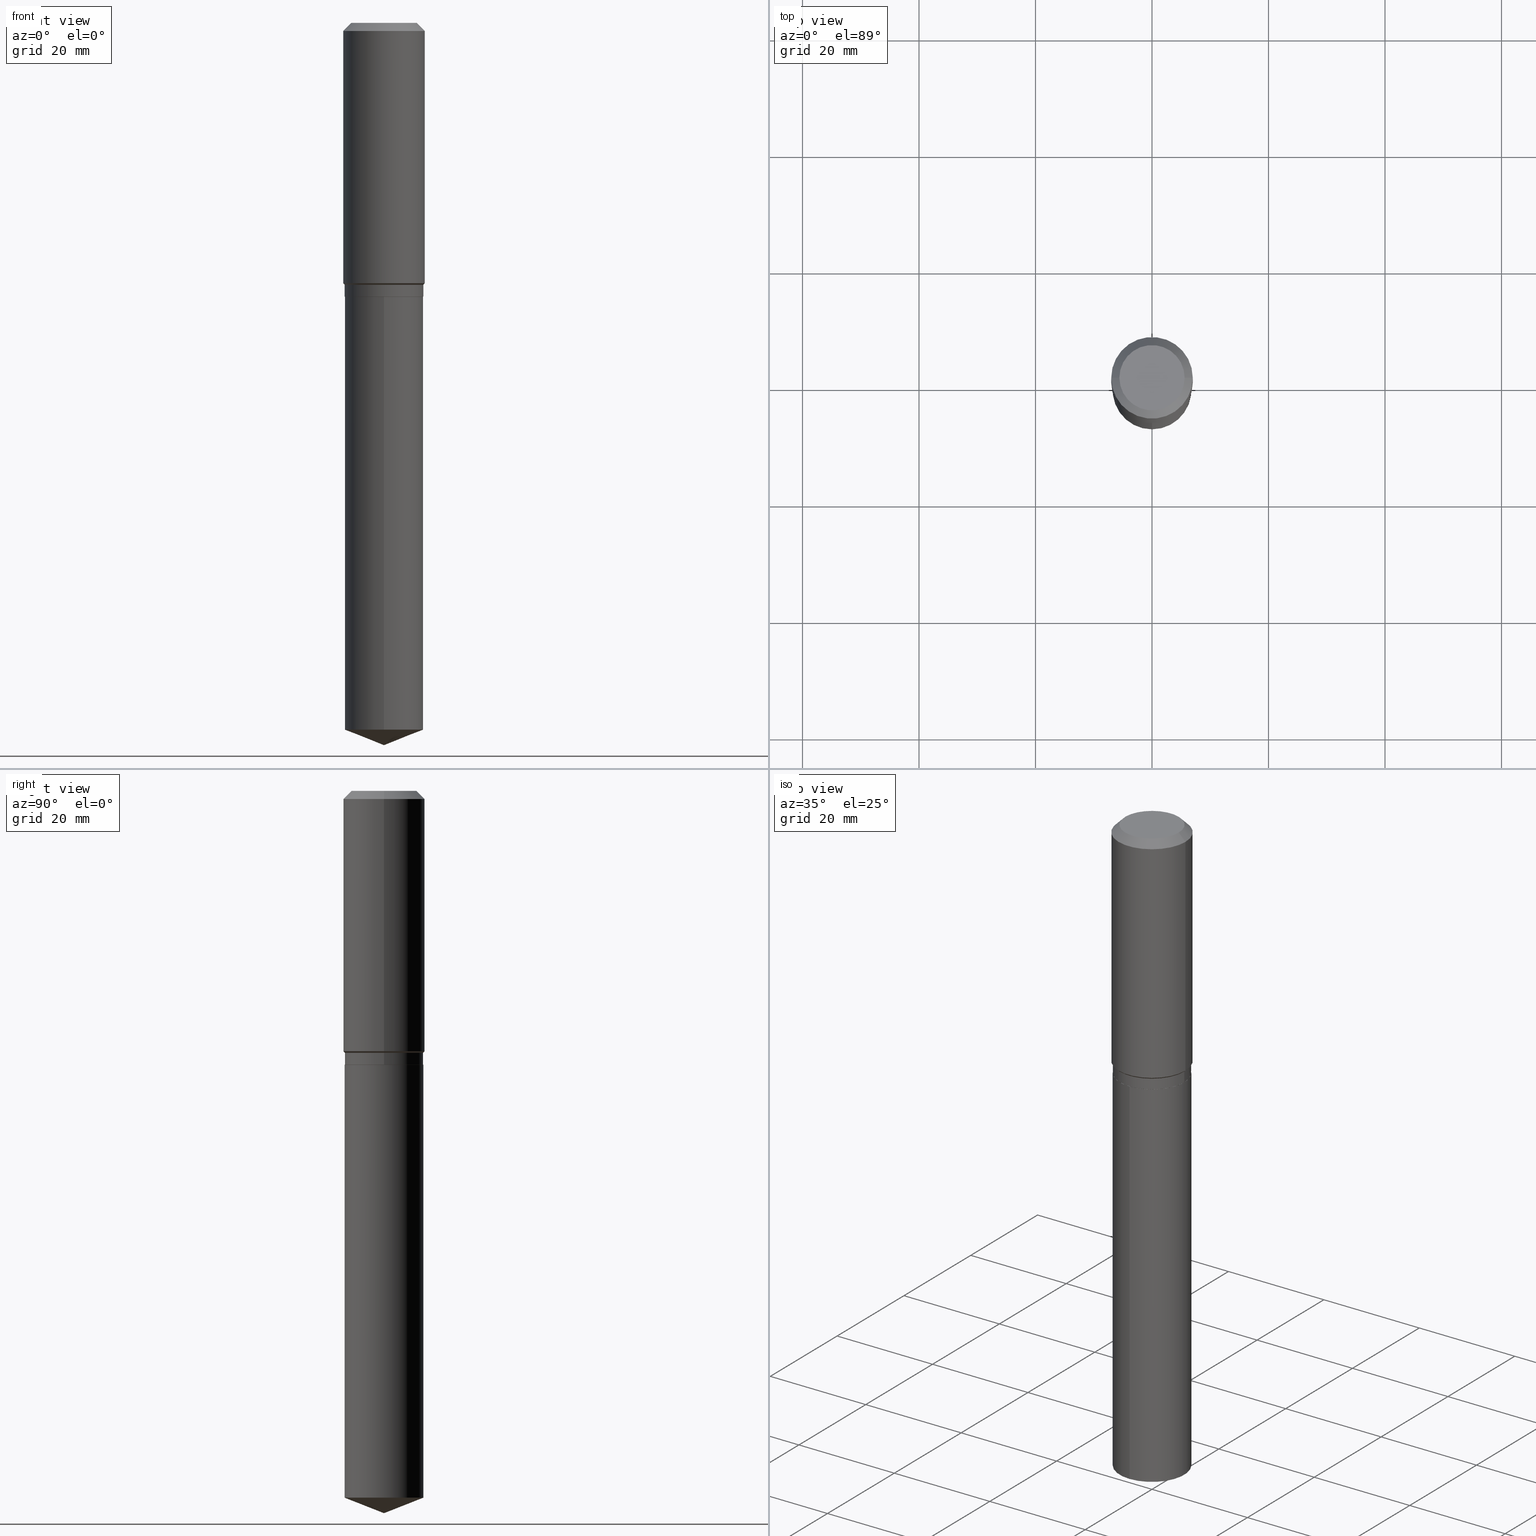
[diagram: canonical four-view strip — front | top / right | iso, engineering-drawing reading convention]
A machine part, canonical four-view strip (front | top / right | iso — engineering-drawing reading convention). The complete STEP part file that produces these views, byte-faithful:
ISO-10303-21;
HEADER;
FILE_DESCRIPTION (( 'STEP AP203' ),
    '1' );
FILE_NAME ('66597.STEP',
    '2024-04-25T01:43:05',
    ( '' ),
    ( '' ),
    'SwSTEP 2.0',
    'SolidWorks 2023',
    '' );
FILE_SCHEMA (( 'CONFIG_CONTROL_DESIGN' ));
ENDSEC;

DATA;
#1 = LINE ( 'NONE', #376, #362 ) ;
#2 = ORIENTED_EDGE ( 'NONE', *, *, #170, .F. ) ;
#3 = AXIS2_PLACEMENT_3D ( 'NONE', #70, #261, #490 ) ;
#4 = APPROVAL_DATE_TIME ( #384, #237 ) ;
#5 = ADVANCED_FACE ( 'NONE', ( #104 ), #301, .T. ) ;
#6 = ORIENTED_EDGE ( 'NONE', *, *, #364, .F. ) ;
#7 = ORIENTED_EDGE ( 'NONE', *, *, #309, .T. ) ;
#8 = AXIS2_PLACEMENT_3D ( 'NONE', #371, #180, #23 ) ;
#9 = DATE_AND_TIME ( #466, #47 ) ;
#10 = DIRECTION ( 'NONE',  ( 0.000000000000000000, 0.000000000000000000, 1.000000000000000000 ) ) ;
#11 = CARTESIAN_POINT ( 'NONE',  ( 4.329213427589546246E-29, -6.180969414154018505E-15, -1.770299999999999319 ) ) ;
#12 = ADVANCED_FACE ( 'NONE', ( #408 ), #314, .T. ) ;
#13 = CONICAL_SURFACE ( 'NONE', #108, 0.2756000000000000116, 0.7853981633974452814 ) ;
#14 = ORIENTED_EDGE ( 'NONE', *, *, #48, .F. ) ;
#15 = AXIS2_PLACEMENT_3D ( 'NONE', #85, #458, #351 ) ;
#16 = DIRECTION ( 'NONE',  ( 1.000000000000000000, -6.982962677686267499E-15, 4.876176775795935793E-29 ) ) ;
#17 = FACE_OUTER_BOUND ( 'NONE', #382, .T. ) ;
#18 = EDGE_CURVE ( 'NONE', #136, #114, #165, .T. ) ;
#19 = ORIENTED_EDGE ( 'NONE', *, *, #51, .F. ) ;
#20 = LINE ( 'NONE', #94, #201 ) ;
#21 = DIRECTION ( 'NONE',  ( 1.000000000000000000, -6.982962677686266711E-15, 4.876132675269083677E-29 ) ) ;
#22 = CARTESIAN_POINT ( 'NONE',  ( 1.347942405969256063E-30, -1.924504513970354330E-16, -0.05512000000000035621 ) ) ;
#23 = DIRECTION ( 'NONE',  ( 1.000000000000000000, -6.982962677686265922E-15, 0.000000000000000000 ) ) ;
#24 = CIRCLE ( 'NONE', #166, 0.2652499999999999858 ) ;
#25 = AXIS2_PLACEMENT_3D ( 'NONE', #424, #10, #268 ) ;
#26 = FACE_OUTER_BOUND ( 'NONE', #252, .T. ) ;
#27 = EDGE_CURVE ( 'NONE', #310, #473, #461, .T. ) ;
#28 = CARTESIAN_POINT ( 'NONE',  ( 0.000000000000000000, 0.000000000000000000, 0.000000000000000000 ) ) ;
#29 = CARTESIAN_POINT ( 'NONE',  ( 4.525340025845595057E-29, -6.460986217529240299E-15, -1.850499999999999812 ) ) ;
#30 = ADVANCED_FACE ( 'NONE', ( #416 ), #127, .T. ) ;
#31 = DIRECTION ( 'NONE',  ( 0.7071067811865453523, -7.319954787623248157E-15, -0.7071067811865496822 ) ) ;
#32 = VERTEX_POINT ( 'NONE', #116 ) ;
#33 = AXIS2_PLACEMENT_3D ( 'NONE', #216, #361, #472 ) ;
#34 = DIRECTION ( 'NONE',  ( -1.000000000000000000, 6.982962677686265922E-15, -4.876176775795935793E-29 ) ) ;
#35 = DIRECTION ( 'NONE',  ( -2.445468806185136597E-29, 3.491481338843145583E-15, 1.000000000000000000 ) ) ;
#36 = VERTEX_POINT ( 'NONE', #233 ) ;
#37 = DIRECTION ( 'NONE',  ( 6.611014441532061856E-15, 0.9304175679820264611, 0.3665012267242919175 ) ) ;
#38 = ORIENTED_EDGE ( 'NONE', *, *, #234, .T. ) ;
#39 = EDGE_CURVE ( 'NONE', #197, #427, #429, .T. ) ;
#40 = APPROVAL_PERSON_ORGANIZATION ( #209, #375, #422 ) ;
#41 = ORIENTED_EDGE ( 'NONE', *, *, #234, .F. ) ;
#42 = COORDINATED_UNIVERSAL_TIME_OFFSET ( 5, 0, .BEHIND. ) ;
#43 = EDGE_LOOP ( 'NONE', ( #161, #344 ) ) ;
#44 = ADVANCED_FACE ( 'NONE', ( #239 ), #448, .T. ) ;
#45 = CALENDAR_DATE ( 2024, 24, 4 ) ;
#46 = CONICAL_SURFACE ( 'NONE', #391, 99.94676754583952061, 1.195550537616117959 ) ;
#47 = LOCAL_TIME ( 21, 43, 5.000000000000000000, #126 ) ;
#48 = EDGE_CURVE ( 'NONE', #197, #124, #278, .T. ) ;
#49 = APPROVAL_ROLE ( '' ) ;
#50 = DIRECTION ( 'NONE',  ( -0.7071067811865500152, 7.493145998870363626E-15, 0.7071067811865450192 ) ) ;
#51 = EDGE_CURVE ( 'NONE', #302, #136, #20, .T. ) ;
#52 = VERTEX_POINT ( 'NONE', #106 ) ;
#53 = CARTESIAN_POINT ( 'NONE',  ( -0.2657499999999999862, -4.431837625224452504E-15, -1.849999999999999867 ) ) ;
#54 = CC_DESIGN_DATE_AND_TIME_ASSIGNMENT ( #9, #393, ( #291 ) ) ;
#55 = CARTESIAN_POINT ( 'NONE',  ( 4.525340025845595057E-29, -6.460986217529240299E-15, -1.850499999999999812 ) ) ;
#56 = ORIENTED_EDGE ( 'NONE', *, *, #229, .T. ) ;
#57 = CONICAL_SURFACE ( 'NONE', #203, 99.94676754583952061, 1.195550537616117959 ) ;
#58 = DIRECTION ( 'NONE',  ( -2.445468806185136597E-29, 3.491481338843145583E-15, 1.000000000000000000 ) ) ;
#59 = LINE ( 'NONE', #368, #271 ) ;
#60 = ORIENTED_EDGE ( 'NONE', *, *, #383, .F. ) ;
#61 = LINE ( 'NONE', #97, #346 ) ;
#62 = CARTESIAN_POINT ( 'NONE',  ( -9.439721640706190018E-47, 1.347742071746724849E-32, 3.860086710912454339E-18 ) ) ;
#63 = CARTESIAN_POINT ( 'NONE',  ( -0.2657499999999999862, -4.292702093871551964E-15, -1.770299999999999319 ) ) ;
#64 = LINE ( 'NONE', #438, #453 ) ;
#65 = LINE ( 'NONE', #147, #329 ) ;
#66 = AXIS2_PLACEMENT_3D ( 'NONE', #212, #370, #16 ) ;
#67 =( LENGTH_UNIT ( ) NAMED_UNIT ( * ) SI_UNIT ( $, .METRE. ) );
#68 = FACE_OUTER_BOUND ( 'NONE', #379, .T. ) ;
#69 = FACE_OUTER_BOUND ( 'NONE', #435, .T. ) ;
#70 = CARTESIAN_POINT ( 'NONE',  ( 4.525340025845595057E-29, -6.460986217529240299E-15, -1.850499999999999812 ) ) ;
#71 = CC_DESIGN_PERSON_AND_ORGANIZATION_ASSIGNMENT ( #465, #95, ( #307 ) ) ;
#72 = DIRECTION ( 'NONE',  ( -6.982962677686266711E-15, -1.000000000000000000, 4.111906669673397387E-15 ) ) ;
#73 = EDGE_LOOP ( 'NONE', ( #366, #81, #420, #41 ) ) ;
#74 = CONICAL_SURFACE ( 'NONE', #210, 0.2657499999999999862, 0.7853981633974518317 ) ;
#75 = CC_DESIGN_APPROVAL ( #375, ( #331 ) ) ;
#76 = CARTESIAN_POINT ( 'NONE',  ( -9.439721640706190018E-47, 1.347742071746724849E-32, 3.860086710912454339E-18 ) ) ;
#77 = VERTEX_POINT ( 'NONE', #395 ) ;
#78 = ADVANCED_FACE ( 'NONE', ( #332 ), #179, .T. ) ;
#79 = VERTEX_POINT ( 'NONE', #324 ) ;
#80 = DIMENSIONAL_EXPONENTS ( 1.000000000000000000, 0.000000000000000000, 0.000000000000000000, 0.000000000000000000, 0.000000000000000000, 0.000000000000000000, 0.000000000000000000 ) ;
#81 = ORIENTED_EDGE ( 'NONE', *, *, #51, .T. ) ;
#82 = COORDINATED_UNIVERSAL_TIME_OFFSET ( 5, 0, .BEHIND. ) ;
#83 = VECTOR ( 'NONE', #413, 39.37007874015748143 ) ;
#84 = APPROVAL_PERSON_ORGANIZATION ( #276, #388, #162 ) ;
#85 = CARTESIAN_POINT ( 'NONE',  ( 0.000000000000000000, 0.000000000000000000, 0.000000000000000000 ) ) ;
#86 = ORIENTED_EDGE ( 'NONE', *, *, #178, .F. ) ;
#87 = DATE_AND_TIME ( #206, #347 ) ;
#88 = ADVANCED_FACE ( 'NONE', ( #289 ), #410, .F. ) ;
#89 = EDGE_LOOP ( 'NONE', ( #131, #423, #100, #319 ) ) ;
#90 = APPROVAL_STATUS ( 'not_yet_approved' ) ;
#91 = EDGE_CURVE ( 'NONE', #124, #310, #367, .T. ) ;
#92 = DATE_AND_TIME ( #45, #101 ) ;
#93 = AXIS2_PLACEMENT_3D ( 'NONE', #481, #249, #476 ) ;
#94 = CARTESIAN_POINT ( 'NONE',  ( 1.888267320282511506E-15, 0.2657499999999935469, -1.850500000000000700 ) ) ;
#95 = PERSON_AND_ORGANIZATION_ROLE ( 'design_owner' ) ;
#96 = ADVANCED_FACE ( 'NONE', ( #407 ), #13, .T. ) ;
#97 = CARTESIAN_POINT ( 'NONE',  ( 0.2756000000000001227, -1.924504513970336137E-15, 1.343874319409360548E-29 ) ) ;
#98 = ORIENTED_EDGE ( 'NONE', *, *, #425, .F. ) ;
#99 = AXIS2_PLACEMENT_3D ( 'NONE', #199, #343, #327 ) ;
#100 = ORIENTED_EDGE ( 'NONE', *, *, #135, .T. ) ;
#101 = LOCAL_TIME ( 21, 43, 5.000000000000000000, #82 ) ;
#102 = CARTESIAN_POINT ( 'NONE',  ( 4.525340025845595057E-29, -6.460986217529240299E-15, -1.850499999999999812 ) ) ;
#103 = CARTESIAN_POINT ( 'NONE',  ( 0.2657499999999999862, -8.036691745749144640E-15, -1.770299999999999319 ) ) ;
#104 = FACE_OUTER_BOUND ( 'NONE', #73, .T. ) ;
#105 = DIRECTION ( 'NONE',  ( -6.982962677686266711E-15, -1.000000000000000000, 3.083930002255048040E-15 ) ) ;
#106 = CARTESIAN_POINT ( 'NONE',  ( 0.2652499999999999858, -8.313217067785521850E-15, -1.850499999999999812 ) ) ;
#107 = CARTESIAN_POINT ( 'NONE',  ( -4.719860820353095009E-47, 6.738710358733624243E-33, 1.930043355456227170E-18 ) ) ;
#108 = AXIS2_PLACEMENT_3D ( 'NONE', #358, #434, #226 ) ;
#109 = DIRECTION ( 'NONE',  ( -2.445468806185136597E-29, 3.491481338843145583E-15, 1.000000000000000000 ) ) ;
#110 = DIRECTION ( 'NONE',  ( -2.445248501264134508E-29, 3.491796828028997738E-15, 1.000000000000000000 ) ) ;
#111 = DIRECTION ( 'NONE',  ( -2.445248501264134508E-29, 3.491796828028997738E-15, 1.000000000000000000 ) ) ;
#112 = DIRECTION ( 'NONE',  ( 1.000000000000000000, -6.982962677686265922E-15, 0.000000000000000000 ) ) ;
#113 = CARTESIAN_POINT ( 'NONE',  ( 4.305125559848622317E-29, -6.146578322966412912E-15, -1.760449999999999182 ) ) ;
#114 = VERTEX_POINT ( 'NONE', #221 ) ;
#115 = DIRECTION ( 'NONE',  ( 2.438088387897960049E-29, -3.491481338843145188E-15, -1.000000000000000000 ) ) ;
#116 = CARTESIAN_POINT ( 'NONE',  ( -0.2652499999999999858, -4.573622383751463456E-15, -1.850499999999999812 ) ) ;
#117 = ORIENTED_EDGE ( 'NONE', *, *, #305, .T. ) ;
#118 = ORIENTED_EDGE ( 'NONE', *, *, #425, .T. ) ;
#119 = PRODUCT_RELATED_PRODUCT_CATEGORY ( 'detail', '', ( #307 ) ) ;
#120 = SECURITY_CLASSIFICATION_LEVEL ( 'unclassified' ) ;
#121 = PERSON_AND_ORGANIZATION ( #389, #192 ) ;
#122 = AXIS2_PLACEMENT_3D ( 'NONE', #22, #182, #153 ) ;
#123 = CIRCLE ( 'NONE', #468, 0.2652499999999999858 ) ;
#124 = VERTEX_POINT ( 'NONE', #474 ) ;
#125 = PERSON_AND_ORGANIZATION_ROLE ( 'creator' ) ;
#126 = COORDINATED_UNIVERSAL_TIME_OFFSET ( 5, 0, .BEHIND. ) ;
#127 = CONICAL_SURFACE ( 'NONE', #3, 0.2652499999999999858, 0.7853981633975507526 ) ;
#128 = CIRCLE ( 'NONE', #8, 0.2756000000000000116 ) ;
#129 = ADVANCED_FACE ( 'NONE', ( #402 ), #74, .T. ) ;
#130 = CARTESIAN_POINT ( 'NONE',  ( 0.2657499999999999862, -1.855722331595125347E-15, 1.295843978167769732E-29 ) ) ;
#131 = ORIENTED_EDGE ( 'NONE', *, *, #394, .F. ) ;
#132 = CARTESIAN_POINT ( 'NONE',  ( 4.329213427589546246E-29, -6.180969414154018505E-15, -1.770299999999999319 ) ) ;
#133 = EDGE_LOOP ( 'NONE', ( #439, #421, #262, #406 ) ) ;
#134 = DIRECTION ( 'NONE',  ( 1.000000000000000000, -6.982962677686268288E-15, 0.000000000000000000 ) ) ;
#135 = EDGE_CURVE ( 'NONE', #349, #36, #128, .T. ) ;
#136 = VERTEX_POINT ( 'NONE', #282 ) ;
#137 = CARTESIAN_POINT ( 'NONE',  ( 4.525340025845595057E-29, -6.460986217529240299E-15, -1.850499999999999812 ) ) ;
#138 = CIRCLE ( 'NONE', #149, 0.2204800000000000093 ) ;
#139 = CIRCLE ( 'NONE', #172, 0.2657499999999999862 ) ;
#140 = DIRECTION ( 'NONE',  ( -2.445468806185136877E-29, 3.491481338843145188E-15, 1.000000000000000000 ) ) ;
#141 = APPROVAL_DATE_TIME ( #92, #375 ) ;
#142 = CC_DESIGN_PERSON_AND_ORGANIZATION_ASSIGNMENT ( #272, #350, ( #317 ) ) ;
#143 = CARTESIAN_POINT ( 'NONE',  ( 0.2657499999999999862, -8.314962808454944142E-15, -1.849999999999999867 ) ) ;
#144 = CARTESIAN_POINT ( 'NONE',  ( -0.2657499999999999862, 1.888267320282466146E-15, -1.307207000235241229E-29 ) ) ;
#145 = CARTESIAN_POINT ( 'NONE',  ( -8.433151517659321881E-28, 1.204259477624346472E-13, 34.48807874015748354 ) ) ;
#146 = ADVANCED_FACE ( 'NONE', ( #171 ), #316, .T. ) ;
#147 = CARTESIAN_POINT ( 'NONE',  ( 1.193852568132814653E-28, -1.704578448896072688E-14, -4.881999999999999673 ) ) ;
#148 = EDGE_CURVE ( 'NONE', #52, #32, #24, .T. ) ;
#149 = AXIS2_PLACEMENT_3D ( 'NONE', #76, #109, #238 ) ;
#150 = CARTESIAN_POINT ( 'NONE',  ( 1.888267320282583292E-15, 0.2657499999999833884, -4.777318291105330239 ) ) ;
#151 = CC_DESIGN_APPROVAL ( #237, ( #291 ) ) ;
#152 = DIRECTION ( 'NONE',  ( 1.000000000000000000, -6.982962677686266711E-15, 4.876176775795935232E-29 ) ) ;
#153 = DIRECTION ( 'NONE',  ( -1.000000000000000000, 6.982962677686269077E-15, 0.000000000000000000 ) ) ;
#154 = DIRECTION ( 'NONE',  ( -2.445468806185136597E-29, 3.491481338843145583E-15, 1.000000000000000000 ) ) ;
#155 = DIRECTION ( 'NONE',  ( 1.000000000000000000, -6.982962677686268288E-15, 0.000000000000000000 ) ) ;
#156 = EDGE_LOOP ( 'NONE', ( #19, #455, #38, #215 ) ) ;
#157 = ORIENTED_EDGE ( 'NONE', *, *, #207, .F. ) ;
#158 = AXIS2_PLACEMENT_3D ( 'NONE', #28, #363, #175 ) ;
#159 = ORIENTED_EDGE ( 'NONE', *, *, #242, .F. ) ;
#160 = CALENDAR_DATE ( 2024, 24, 4 ) ;
#161 = ORIENTED_EDGE ( 'NONE', *, *, #385, .T. ) ;
#162 = APPROVAL_ROLE ( '' ) ;
#163 = ORIENTED_EDGE ( 'NONE', *, *, #305, .F. ) ;
#164 = PERSON_AND_ORGANIZATION ( #389, #192 ) ;
#165 = CIRCLE ( 'NONE', #451, 0.2657499999999999862 ) ;
#166 = AXIS2_PLACEMENT_3D ( 'NONE', #102, #185, #315 ) ;
#167 = VECTOR ( 'NONE', #255, 39.37007874015748143 ) ;
#168 = APPLICATION_PROTOCOL_DEFINITION ( 'international standard', 'config_control_design', 1994, #280 ) ;
#169 = PERSON_AND_ORGANIZATION ( #389, #192 ) ;
#170 = EDGE_CURVE ( 'NONE', #427, #79, #469, .T. ) ;
#171 = FACE_OUTER_BOUND ( 'NONE', #471, .T. ) ;
#172 = AXIS2_PLACEMENT_3D ( 'NONE', #483, #432, #283 ) ;
#173 = ORIENTED_EDGE ( 'NONE', *, *, #383, .T. ) ;
#174 = CARTESIAN_POINT ( 'NONE',  ( -0.2204800000000000093, 1.635828836874783961E-15, 3.860086710901350968E-18 ) ) ;
#175 = DIRECTION ( 'NONE',  ( 1.000000000000000000, -6.982962677686267499E-15, 4.876176775795935793E-29 ) ) ;
#176 = LINE ( 'NONE', #286, #355 ) ;
#177 = VERTEX_POINT ( 'NONE', #174 ) ;
#178 = EDGE_CURVE ( 'NONE', #473, #349, #61, .T. ) ;
#179 = CYLINDRICAL_SURFACE ( 'NONE', #66, 0.2756000000000001227 ) ;
#180 = DIRECTION ( 'NONE',  ( -2.445468806185136597E-29, 3.491481338843145583E-15, 1.000000000000000000 ) ) ;
#181 = LINE ( 'NONE', #103, #167 ) ;
#182 = DIRECTION ( 'NONE',  ( 2.445468806185136597E-29, -3.491481338843145583E-15, -1.000000000000000000 ) ) ;
#183 = AXIS2_PLACEMENT_3D ( 'NONE', #374, #297, #191 ) ;
#184 = CIRCLE ( 'NONE', #311, 0.2657499999999999862 ) ;
#185 = DIRECTION ( 'NONE',  ( -2.445468806185136597E-29, 3.491481338843145583E-15, 1.000000000000000000 ) ) ;
#186 = DIRECTION ( 'NONE',  ( -6.982962677686266711E-15, -1.000000000000000000, 3.498627837350020000E-15 ) ) ;
#187 = CARTESIAN_POINT ( 'NONE',  ( -0.2756000000000002337, -4.188322543211574745E-15, -1.760449999999999182 ) ) ;
#188 = DIRECTION ( 'NONE',  ( -2.438088387897960049E-29, 3.491481338843145188E-15, 1.000000000000000000 ) ) ;
#189 = MANIFOLD_SOLID_BREP ( 'Body-Move/Copy2[1]', #335 ) ;
#190 = CIRCLE ( 'NONE', #452, 0.2657499999999999862 ) ;
#191 = DIRECTION ( 'NONE',  ( 1.000000000000000000, -6.982962677686267499E-15, 0.000000000000000000 ) ) ;
#192 = ORGANIZATION ( 'UNSPECIFIED', 'UNSPECIFIED', '' ) ;
#193 = ORIENTED_EDGE ( 'NONE', *, *, #91, .T. ) ;
#194 = ORIENTED_EDGE ( 'NONE', *, *, #364, .T. ) ;
#195 = LINE ( 'NONE', #381, #462 ) ;
#196 = EDGE_CURVE ( 'NONE', #36, #349, #467, .T. ) ;
#197 = VERTEX_POINT ( 'NONE', #53 ) ;
#198 = LINE ( 'NONE', #373, #270 ) ;
#199 = CARTESIAN_POINT ( 'NONE',  ( 4.525340025845595057E-29, -6.460986217529240299E-15, -1.850499999999999812 ) ) ;
#200 = LENGTH_MEASURE_WITH_UNIT ( LENGTH_MEASURE( 0.02539999999999999897 ), #67 );
#201 = VECTOR ( 'NONE', #441, 39.37007874015748143 ) ;
#202 = EDGE_LOOP ( 'NONE', ( #342, #193, #163, #225 ) ) ;
#203 = AXIS2_PLACEMENT_3D ( 'NONE', #145, #372, #186 ) ;
#204 = EDGE_CURVE ( 'NONE', #302, #77, #354, .T. ) ;
#205 = EDGE_LOOP ( 'NONE', ( #279, #173, #348, #352 ) ) ;
#206 = CALENDAR_DATE ( 2024, 24, 4 ) ;
#207 = EDGE_CURVE ( 'NONE', #79, #124, #190, .T. ) ;
#208 = ORIENTED_EDGE ( 'NONE', *, *, #91, .F. ) ;
#209 = PERSON_AND_ORGANIZATION ( #389, #192 ) ;
#210 = AXIS2_PLACEMENT_3D ( 'NONE', #11, #58, #134 ) ;
#211 = APPROVAL_DATE_TIME ( #87, #388 ) ;
#212 = CARTESIAN_POINT ( 'NONE',  ( 0.000000000000000000, 0.000000000000000000, 0.000000000000000000 ) ) ;
#213 = APPROVAL_STATUS ( 'not_yet_approved' ) ;
#214 = CC_DESIGN_DATE_AND_TIME_ASSIGNMENT ( #274, #387, ( #331 ) ) ;
#215 = ORIENTED_EDGE ( 'NONE', *, *, #18, .F. ) ;
#216 = CARTESIAN_POINT ( 'NONE',  ( 1.168213806564335856E-28, -1.668084104262808193E-14, -4.777318291105329351 ) ) ;
#217 = AXIS2_PLACEMENT_3D ( 'NONE', #267, #254, #338 ) ;
#218 = CIRCLE ( 'NONE', #377, 0.2657499999999999862 ) ;
#219 = ADVANCED_FACE ( 'NONE', ( #445 ), #293, .T. ) ;
#220 = ORIENTED_EDGE ( 'NONE', *, *, #39, .F. ) ;
#221 = CARTESIAN_POINT ( 'NONE',  ( -1.855722331595079987E-15, -0.2657500000000064255, -1.850499999999998924 ) ) ;
#222 = CC_DESIGN_PERSON_AND_ORGANIZATION_ASSIGNMENT ( #121, #244, ( #331 ) ) ;
#223 = DIRECTION ( 'NONE',  ( -2.445468806185136877E-29, 3.491481338843145188E-15, 1.000000000000000000 ) ) ;
#224 = CYLINDRICAL_SURFACE ( 'NONE', #158, 0.2756000000000001227 ) ;
#225 = ORIENTED_EDGE ( 'NONE', *, *, #414, .F. ) ;
#226 = DIRECTION ( 'NONE',  ( -1.000000000000000000, 6.982962677686269077E-15, 0.000000000000000000 ) ) ;
#227 = CIRCLE ( 'NONE', #294, 0.2204800000000000093 ) ;
#228 = DIRECTION ( 'NONE',  ( -0.7071067811865453523, 2.468850131082234184E-15, -0.7071067811865496822 ) ) ;
#229 = EDGE_CURVE ( 'NONE', #124, #79, #218, .T. ) ;
#230 = PLANE ( 'NONE',  #336 ) ;
#231 =( CONVERSION_BASED_UNIT ( 'INCH', #200 ) LENGTH_UNIT ( ) NAMED_UNIT ( #80 ) );
#232 = CYLINDRICAL_SURFACE ( 'NONE', #15, 0.2657499999999999862 ) ;
#233 = CARTESIAN_POINT ( 'NONE',  ( -0.2756000000000000116, -1.211258607426886733E-15, -0.05512000000000035621 ) ) ;
#234 = EDGE_CURVE ( 'NONE', #77, #114, #443, .T. ) ;
#235 = AXIS2_PLACEMENT_3D ( 'NONE', #264, #417, #72 ) ;
#236 = CARTESIAN_POINT ( 'NONE',  ( 4.525340025845595057E-29, -6.460986217529240299E-15, -1.850499999999999812 ) ) ;
#237 = APPROVAL ( #213, 'UNSPECIFIED' ) ;
#238 = DIRECTION ( 'NONE',  ( 1.000000000000000000, -6.982962677686266711E-15, 4.876132675269083677E-29 ) ) ;
#239 = FACE_OUTER_BOUND ( 'NONE', #156, .T. ) ;
#240 = ORIENTED_EDGE ( 'NONE', *, *, #296, .T. ) ;
#241 = CALENDAR_DATE ( 2024, 24, 4 ) ;
#242 = EDGE_CURVE ( 'NONE', #246, #349, #195, .T. ) ;
#243 = ADVANCED_BREP_SHAPE_REPRESENTATION ( '66597', ( #189, #356, #25 ), #487 ) ;
#244 = PERSON_AND_ORGANIZATION_ROLE ( 'classification_officer' ) ;
#245 = AXIS2_PLACEMENT_3D ( 'NONE', #444, #257, #152 ) ;
#246 = VERTEX_POINT ( 'NONE', #447 ) ;
#247 = CARTESIAN_POINT ( 'NONE',  ( 1.347942405969256063E-30, -1.924504513970354330E-16, -0.05512000000000035621 ) ) ;
#248 = ORIENTED_EDGE ( 'NONE', *, *, #204, .F. ) ;
#249 = DIRECTION ( 'NONE',  ( 2.445248501264134228E-29, -3.491796828028997738E-15, -1.000000000000000000 ) ) ;
#250 = AXIS2_PLACEMENT_3D ( 'NONE', #113, #479, #259 ) ;
#251 = CIRCLE ( 'NONE', #235, 0.2657499999999999862 ) ;
#252 = EDGE_LOOP ( 'NONE', ( #341, #488, #157, #2 ) ) ;
#253 = DIRECTION ( 'NONE',  ( 1.000000000000000000, -6.982962677686268288E-15, 0.000000000000000000 ) ) ;
#254 = DIRECTION ( 'NONE',  ( -2.445248501264134508E-29, 3.491796828028997738E-15, 1.000000000000000000 ) ) ;
#255 = DIRECTION ( 'NONE',  ( 0.7071067811865500152, -2.468850131082282699E-15, 0.7071067811865450192 ) ) ;
#256 = DIRECTION ( 'NONE',  ( 1.000000000000000000, -6.982962677686268288E-15, 0.000000000000000000 ) ) ;
#257 = DIRECTION ( 'NONE',  ( -2.445468806185136597E-29, 3.491481338843145583E-15, 1.000000000000000000 ) ) ;
#258 = PLANE ( 'NONE',  #437 ) ;
#259 = DIRECTION ( 'NONE',  ( 1.000000000000000000, -6.982962677686267499E-15, 0.000000000000000000 ) ) ;
#260 = FACE_OUTER_BOUND ( 'NONE', #442, .T. ) ;
#261 = DIRECTION ( 'NONE',  ( -2.445468806185136597E-29, 3.491481338843145583E-15, 1.000000000000000000 ) ) ;
#262 = ORIENTED_EDGE ( 'NONE', *, *, #178, .T. ) ;
#263 = AXIS2_PLACEMENT_3D ( 'NONE', #436, #287, #253 ) ;
#264 = CARTESIAN_POINT ( 'NONE',  ( 1.168213806564335856E-28, -1.668084104262808193E-14, -4.777318291105329351 ) ) ;
#265 = LOCAL_TIME ( 21, 43, 5.000000000000000000, #457 ) ;
#266 = EDGE_LOOP ( 'NONE', ( #60, #194, #323, #220 ) ) ;
#267 = CARTESIAN_POINT ( 'NONE',  ( 4.525340025845595057E-29, -6.460986217529240299E-15, -1.850499999999999812 ) ) ;
#268 = DIRECTION ( 'NONE',  ( 1.000000000000000000, 0.000000000000000000, 0.000000000000000000 ) ) ;
#269 = ADVANCED_FACE ( 'NONE', ( #260 ), #258, .F. ) ;
#270 = VECTOR ( 'NONE', #340, 39.37007874015748143 ) ;
#271 = VECTOR ( 'NONE', #325, 39.37007874015748143 ) ;
#272 = PERSON_AND_ORGANIZATION ( #389, #192 ) ;
#273 = ORIENTED_EDGE ( 'NONE', *, *, #288, .T. ) ;
#274 = DATE_AND_TIME ( #160, #285 ) ;
#275 = EDGE_CURVE ( 'NONE', #77, #302, #251, .T. ) ;
#276 = PERSON_AND_ORGANIZATION ( #389, #192 ) ;
#277 = VECTOR ( 'NONE', #140, 39.37007874015748143 ) ;
#278 = LINE ( 'NONE', #144, #277 ) ;
#279 = ORIENTED_EDGE ( 'NONE', *, *, #148, .T. ) ;
#280 = APPLICATION_CONTEXT ( 'configuration controlled 3d designs of mechanical parts and assemblies' ) ;
#281 = ORIENTED_EDGE ( 'NONE', *, *, #275, .F. ) ;
#282 = CARTESIAN_POINT ( 'NONE',  ( 1.888267320282583292E-15, 0.2657499999999935469, -1.850500000000000700 ) ) ;
#283 = DIRECTION ( 'NONE',  ( 1.000000000000000000, -6.982962677686268288E-15, 0.000000000000000000 ) ) ;
#284 = ORIENTED_EDGE ( 'NONE', *, *, #298, .T. ) ;
#285 = LOCAL_TIME ( 21, 43, 5.000000000000000000, #428 ) ;
#286 = CARTESIAN_POINT ( 'NONE',  ( -0.2652499999999999858, -4.576271610925574657E-15, -1.850499999999999812 ) ) ;
#287 = DIRECTION ( 'NONE',  ( -2.445468806185136597E-29, 3.491481338843145583E-15, 1.000000000000000000 ) ) ;
#288 = EDGE_CURVE ( 'NONE', #463, #302, #65, .T. ) ;
#289 = FACE_OUTER_BOUND ( 'NONE', #43, .T. ) ;
#290 = CARTESIAN_POINT ( 'NONE',  ( 0.2756000000000002337, -8.071082836936750233E-15, -1.760449999999999182 ) ) ;
#291 = PRODUCT_DEFINITION ( 'UNKNOWN', '', #317, #320 ) ;
#292 = FACE_OUTER_BOUND ( 'NONE', #339, .T. ) ;
#293 = CONICAL_SURFACE ( 'NONE', #477, 0.2652499999999999858, 0.7853981633975507526 ) ;
#294 = AXIS2_PLACEMENT_3D ( 'NONE', #62, #399, #21 ) ;
#295 = DIRECTION ( 'NONE',  ( -2.445468806185136597E-29, 3.491481338843145583E-15, 1.000000000000000000 ) ) ;
#296 = EDGE_CURVE ( 'NONE', #177, #36, #1, .T. ) ;
#297 = DIRECTION ( 'NONE',  ( -2.445468806185136597E-29, 3.491481338843145583E-15, 1.000000000000000000 ) ) ;
#298 = EDGE_CURVE ( 'NONE', #177, #246, #138, .T. ) ;
#299 = CARTESIAN_POINT ( 'NONE',  ( 4.525340025845595057E-29, -6.460986217529240299E-15, -1.850499999999999812 ) ) ;
#300 = CARTESIAN_POINT ( 'NONE',  ( -1.855722331595079987E-15, -0.2657500000000064255, -1.850499999999998924 ) ) ;
#301 = CYLINDRICAL_SURFACE ( 'NONE', #217, 0.2657499999999999862 ) ;
#302 = VERTEX_POINT ( 'NONE', #150 ) ;
#303 = AXIS2_PLACEMENT_3D ( 'NONE', #247, #398, #321 ) ;
#304 = ORIENTED_EDGE ( 'NONE', *, *, #298, .F. ) ;
#305 = EDGE_CURVE ( 'NONE', #473, #310, #486, .T. ) ;
#306 = APPLICATION_PROTOCOL_DEFINITION ( 'international standard', 'config_control_design', 1994, #369 ) ;
#307 = PRODUCT ( '66597', '66597', '', ( #353 ) ) ;
#308 = VECTOR ( 'NONE', #50, 39.37007874015748143 ) ;
#309 = EDGE_CURVE ( 'NONE', #310, #36, #198, .T. ) ;
#310 = VERTEX_POINT ( 'NONE', #187 ) ;
#311 = AXIS2_PLACEMENT_3D ( 'NONE', #137, #440, #105 ) ;
#312 =( NAMED_UNIT ( * ) PLANE_ANGLE_UNIT ( ) SI_UNIT ( $, .RADIAN. ) );
#313 = PERSON_AND_ORGANIZATION_ROLE ( 'design_supplier' ) ;
#314 = CONICAL_SURFACE ( 'NONE', #122, 0.2756000000000000116, 0.7853981633974452814 ) ;
#315 = DIRECTION ( 'NONE',  ( 1.000000000000000000, -6.982962677686265922E-15, 0.000000000000000000 ) ) ;
#316 = CONICAL_SURFACE ( 'NONE', #263, 0.2657499999999999862, 0.7853981633974518317 ) ;
#317 = PRODUCT_DEFINITION_FORMATION_WITH_SPECIFIED_SOURCE ( 'ANY', '', #307, .NOT_KNOWN. ) ;
#318 = ADVANCED_FACE ( 'NONE', ( #292 ), #46, .T. ) ;
#319 = ORIENTED_EDGE ( 'NONE', *, *, #296, .F. ) ;
#320 = DESIGN_CONTEXT ( 'detailed design', #369, 'design' ) ;
#321 = DIRECTION ( 'NONE',  ( 1.000000000000000000, -6.982962677686265922E-15, 0.000000000000000000 ) ) ;
#322 = DIRECTION ( 'NONE',  ( -0.7071067811866199593, 7.493145998870616062E-15, 0.7071067811864750752 ) ) ;
#323 = ORIENTED_EDGE ( 'NONE', *, *, #450, .T. ) ;
#324 = CARTESIAN_POINT ( 'NONE',  ( 0.2657499999999999862, -8.036691745749144640E-15, -1.770299999999999319 ) ) ;
#325 = DIRECTION ( 'NONE',  ( 0.7071067811866199593, -2.468850131083015945E-15, 0.7071067811864750752 ) ) ;
#326 = EDGE_LOOP ( 'NONE', ( #360, #118, #248 ) ) ;
#327 = DIRECTION ( 'NONE',  ( -6.982962677686266711E-15, -1.000000000000000000, 3.083930002255048040E-15 ) ) ;
#328 = ADVANCED_FACE ( 'NONE', ( #26 ), #333, .T. ) ;
#329 = VECTOR ( 'NONE', #37, 39.37007874015748854 ) ;
#330 = DIRECTION ( 'NONE',  ( -6.982962677686266711E-15, -1.000000000000000000, 3.083930002255048040E-15 ) ) ;
#331 = SECURITY_CLASSIFICATION ( '', '', #120 ) ;
#332 = FACE_OUTER_BOUND ( 'NONE', #133, .T. ) ;
#333 = CYLINDRICAL_SURFACE ( 'NONE', #245, 0.2657499999999999862 ) ;
#334 = DIRECTION ( 'NONE',  ( -6.982962677686266711E-15, -1.000000000000000000, 3.498627837350020000E-15 ) ) ;
#335 = CLOSED_SHELL ( 'NONE', ( #5, #318, #456, #44, #88 ) ) ;
#336 = AXIS2_PLACEMENT_3D ( 'NONE', #29, #188, #485 ) ;
#337 = CARTESIAN_POINT ( 'NONE',  ( -8.433151517659321881E-28, 1.204259477624346472E-13, 34.48807874015748354 ) ) ;
#338 = DIRECTION ( 'NONE',  ( -6.982962677686266711E-15, -1.000000000000000000, 3.083930002255048040E-15 ) ) ;
#339 = EDGE_LOOP ( 'NONE', ( #98, #273, #281 ) ) ;
#340 = DIRECTION ( 'NONE',  ( -2.445468806185136877E-29, 3.491481338843145188E-15, 1.000000000000000000 ) ) ;
#341 = ORIENTED_EDGE ( 'NONE', *, *, #409, .T. ) ;
#342 = ORIENTED_EDGE ( 'NONE', *, *, #207, .T. ) ;
#343 = DIRECTION ( 'NONE',  ( -2.445248501264134508E-29, 3.491796828028997738E-15, 1.000000000000000000 ) ) ;
#344 = ORIENTED_EDGE ( 'NONE', *, *, #18, .T. ) ;
#345 = ADVANCED_FACE ( 'NONE', ( #68 ), #230, .F. ) ;
#346 = VECTOR ( 'NONE', #223, 39.37007874015748143 ) ;
#347 = LOCAL_TIME ( 21, 43, 5.000000000000000000, #42 ) ;
#348 = ORIENTED_EDGE ( 'NONE', *, *, #409, .F. ) ;
#349 = VERTEX_POINT ( 'NONE', #415 ) ;
#350 = PERSON_AND_ORGANIZATION_ROLE ( 'creator' ) ;
#351 = DIRECTION ( 'NONE',  ( 1.000000000000000000, -6.982962677686266711E-15, 4.876176775795935232E-29 ) ) ;
#352 = ORIENTED_EDGE ( 'NONE', *, *, #450, .F. ) ;
#353 = MECHANICAL_CONTEXT ( 'NONE', #280, 'mechanical' ) ;
#354 = CIRCLE ( 'NONE', #33, 0.2657499999999999862 ) ;
#355 = VECTOR ( 'NONE', #322, 39.37007874015748143 ) ;
#356 = MANIFOLD_SOLID_BREP ( 'Body-Move/Copy2[2]', #401 ) ;
#357 = DIRECTION ( 'NONE',  ( -2.445468806185136597E-29, 3.491481338843145583E-15, 1.000000000000000000 ) ) ;
#358 = CARTESIAN_POINT ( 'NONE',  ( 1.347942405969256063E-30, -1.924504513970354330E-16, -0.05512000000000035621 ) ) ;
#359 = ADVANCED_FACE ( 'NONE', ( #69 ), #232, .T. ) ;
#360 = ORIENTED_EDGE ( 'NONE', *, *, #288, .F. ) ;
#361 = DIRECTION ( 'NONE',  ( -2.445248501264134508E-29, 3.491796828028997738E-15, 1.000000000000000000 ) ) ;
#362 = VECTOR ( 'NONE', #228, 39.37007874015748143 ) ;
#363 = DIRECTION ( 'NONE',  ( -2.445468806185136597E-29, 3.491481338843145583E-15, 1.000000000000000000 ) ) ;
#364 = EDGE_CURVE ( 'NONE', #32, #52, #123, .T. ) ;
#365 = DIRECTION ( 'NONE',  ( 1.000000000000000000, -6.982962677686265922E-15, 0.000000000000000000 ) ) ;
#366 = ORIENTED_EDGE ( 'NONE', *, *, #275, .T. ) ;
#367 = LINE ( 'NONE', #63, #308 ) ;
#368 = CARTESIAN_POINT ( 'NONE',  ( 0.2652499999999999858, -8.313217067785521850E-15, -1.850499999999999812 ) ) ;
#369 = APPLICATION_CONTEXT ( 'configuration controlled 3d designs of mechanical parts and assemblies' ) ;
#370 = DIRECTION ( 'NONE',  ( -2.445468806185136597E-29, 3.491481338843145583E-15, 1.000000000000000000 ) ) ;
#371 = CARTESIAN_POINT ( 'NONE',  ( 1.347942405969256063E-30, -1.924504513970354330E-16, -0.05512000000000035621 ) ) ;
#372 = DIRECTION ( 'NONE',  ( -2.445248501264134508E-29, 3.491796828028997738E-15, 1.000000000000000000 ) ) ;
#373 = CARTESIAN_POINT ( 'NONE',  ( -0.2756000000000001227, 1.958255779754836984E-15, -1.355658510874252567E-29 ) ) ;
#374 = CARTESIAN_POINT ( 'NONE',  ( 4.305125559848622317E-29, -6.146578322966412912E-15, -1.760449999999999182 ) ) ;
#375 = APPROVAL ( #390, 'UNSPECIFIED' ) ;
#376 = CARTESIAN_POINT ( 'NONE',  ( -0.2756000000000000116, 1.732054062573300039E-15, -0.05512000000000035621 ) ) ;
#377 = AXIS2_PLACEMENT_3D ( 'NONE', #378, #154, #256 ) ;
#378 = CARTESIAN_POINT ( 'NONE',  ( 4.329213427589546246E-29, -6.180969414154018505E-15, -1.770299999999999319 ) ) ;
#379 = EDGE_LOOP ( 'NONE', ( #449, #6 ) ) ;
#380 = ORIENTED_EDGE ( 'NONE', *, *, #170, .T. ) ;
#381 = CARTESIAN_POINT ( 'NONE',  ( 0.2756000000000000116, -2.083203699582869812E-15, -0.05512000000000035621 ) ) ;
#382 = EDGE_LOOP ( 'NONE', ( #117, #7, #475, #86 ) ) ;
#383 = EDGE_CURVE ( 'NONE', #32, #197, #176, .T. ) ;
#384 = DATE_AND_TIME ( #241, #265 ) ;
#385 = EDGE_CURVE ( 'NONE', #114, #136, #184, .T. ) ;
#386 = ORIENTED_EDGE ( 'NONE', *, *, #229, .F. ) ;
#387 = DATE_TIME_ROLE ( 'classification_date' ) ;
#388 = APPROVAL ( #90, 'UNSPECIFIED' ) ;
#389 = PERSON ( 'UNSPECIFIED', 'UNSPECIFIED', 'UNSPECIFIED', ('UNSPECIFIED'), ('UNSPECIFIED'), ('UNSPECIFIED') ) ;
#390 = APPROVAL_STATUS ( 'not_yet_approved' ) ;
#391 = AXIS2_PLACEMENT_3D ( 'NONE', #337, #110, #334 ) ;
#392 = CC_DESIGN_APPROVAL ( #388, ( #317 ) ) ;
#393 = DATE_TIME_ROLE ( 'creation_date' ) ;
#394 = EDGE_CURVE ( 'NONE', #246, #177, #227, .T. ) ;
#395 = CARTESIAN_POINT ( 'NONE',  ( -1.855722331595008595E-15, -0.2657500000000166951, -4.777318291105328463 ) ) ;
#396 =( NAMED_UNIT ( * ) SI_UNIT ( $, .STERADIAN. ) SOLID_ANGLE_UNIT ( ) );
#397 = ORIENTED_EDGE ( 'NONE', *, *, #196, .T. ) ;
#398 = DIRECTION ( 'NONE',  ( -2.445468806185136597E-29, 3.491481338843145583E-15, 1.000000000000000000 ) ) ;
#399 = DIRECTION ( 'NONE',  ( -2.445468806185136597E-29, 3.491481338843145583E-15, 1.000000000000000000 ) ) ;
#400 = ORIENTED_EDGE ( 'NONE', *, *, #394, .T. ) ;
#401 = CLOSED_SHELL ( 'NONE', ( #219, #96, #430, #129, #328, #359, #146, #78, #12, #269, #345, #30 ) ) ;
#402 = FACE_OUTER_BOUND ( 'NONE', #202, .T. ) ;
#403 = VECTOR ( 'NONE', #431, 39.37007874015748143 ) ;
#404 = CC_DESIGN_SECURITY_CLASSIFICATION ( #331, ( #317 ) ) ;
#405 = DIRECTION ( 'NONE',  ( -6.497071151882115892E-15, -0.9304175679820240186, 0.3665012267242985233 ) ) ;
#406 = ORIENTED_EDGE ( 'NONE', *, *, #196, .F. ) ;
#407 = FACE_OUTER_BOUND ( 'NONE', #89, .T. ) ;
#408 = FACE_OUTER_BOUND ( 'NONE', #454, .T. ) ;
#409 = EDGE_CURVE ( 'NONE', #427, #197, #139, .T. ) ;
#410 = PLANE ( 'NONE',  #93 ) ;
#411 = FACE_OUTER_BOUND ( 'NONE', #326, .T. ) ;
#412 = AXIS2_PLACEMENT_3D ( 'NONE', #418, #35, #155 ) ;
#413 = DIRECTION ( 'NONE',  ( -2.445248501264134508E-29, 3.491796828028997738E-15, 1.000000000000000000 ) ) ;
#414 = EDGE_CURVE ( 'NONE', #79, #473, #181, .T. ) ;
#415 = CARTESIAN_POINT ( 'NONE',  ( 0.2756000000000000116, -2.116954965367370658E-15, -0.05512000000000035621 ) ) ;
#416 = FACE_OUTER_BOUND ( 'NONE', #266, .T. ) ;
#417 = DIRECTION ( 'NONE',  ( -2.445248501264134508E-29, 3.491796828028997738E-15, 1.000000000000000000 ) ) ;
#418 = CARTESIAN_POINT ( 'NONE',  ( 4.524117291442502256E-29, -6.459240476859818795E-15, -1.849999999999999867 ) ) ;
#419 = ORIENTED_EDGE ( 'NONE', *, *, #27, .F. ) ;
#420 = ORIENTED_EDGE ( 'NONE', *, *, #385, .F. ) ;
#421 = ORIENTED_EDGE ( 'NONE', *, *, #27, .T. ) ;
#422 = APPROVAL_ROLE ( '' ) ;
#423 = ORIENTED_EDGE ( 'NONE', *, *, #242, .T. ) ;
#424 = CARTESIAN_POINT ( 'NONE',  ( 0.000000000000000000, 0.000000000000000000, 0.000000000000000000 ) ) ;
#425 = EDGE_CURVE ( 'NONE', #463, #77, #64, .T. ) ;
#426 = PRODUCT_DEFINITION_SHAPE ( 'NONE', 'NONE',  #291 ) ;
#427 = VERTEX_POINT ( 'NONE', #143 ) ;
#428 = COORDINATED_UNIVERSAL_TIME_OFFSET ( 5, 0, .BEHIND. ) ;
#429 = CIRCLE ( 'NONE', #412, 0.2657499999999999862 ) ;
#430 = ADVANCED_FACE ( 'NONE', ( #17 ), #224, .T. ) ;
#431 = DIRECTION ( 'NONE',  ( -2.445468806185136877E-29, 3.491481338843145188E-15, 1.000000000000000000 ) ) ;
#432 = DIRECTION ( 'NONE',  ( -2.445468806185136597E-29, 3.491481338843145583E-15, 1.000000000000000000 ) ) ;
#433 = ORIENTED_EDGE ( 'NONE', *, *, #414, .T. ) ;
#434 = DIRECTION ( 'NONE',  ( 2.445468806185136597E-29, -3.491481338843145583E-15, -1.000000000000000000 ) ) ;
#435 = EDGE_LOOP ( 'NONE', ( #14, #460, #380, #386 ) ) ;
#436 = CARTESIAN_POINT ( 'NONE',  ( 4.329213427589546246E-29, -6.180969414154018505E-15, -1.770299999999999319 ) ) ;
#437 = AXIS2_PLACEMENT_3D ( 'NONE', #107, #115, #34 ) ;
#438 = CARTESIAN_POINT ( 'NONE',  ( 1.193770318317150383E-28, -1.704695211443756531E-14, -4.881999999999999673 ) ) ;
#439 = ORIENTED_EDGE ( 'NONE', *, *, #309, .F. ) ;
#440 = DIRECTION ( 'NONE',  ( -2.445248501264134508E-29, 3.491796828028997738E-15, 1.000000000000000000 ) ) ;
#441 = DIRECTION ( 'NONE',  ( -2.445248501264134508E-29, 3.491796828028997738E-15, 1.000000000000000000 ) ) ;
#442 = EDGE_LOOP ( 'NONE', ( #284, #400 ) ) ;
#443 = LINE ( 'NONE', #300, #83 ) ;
#444 = CARTESIAN_POINT ( 'NONE',  ( 0.000000000000000000, 0.000000000000000000, 0.000000000000000000 ) ) ;
#445 = FACE_OUTER_BOUND ( 'NONE', #205, .T. ) ;
#446 = DIRECTION ( 'NONE',  ( -2.445468806185136597E-29, 3.491481338843145583E-15, 1.000000000000000000 ) ) ;
#447 = CARTESIAN_POINT ( 'NONE',  ( 0.2204800000000000093, -1.797903149065768707E-15, 3.860086710924123164E-18 ) ) ;
#448 = CYLINDRICAL_SURFACE ( 'NONE', #99, 0.2657499999999999862 ) ;
#449 = ORIENTED_EDGE ( 'NONE', *, *, #148, .F. ) ;
#450 = EDGE_CURVE ( 'NONE', #52, #427, #59, .T. ) ;
#451 = AXIS2_PLACEMENT_3D ( 'NONE', #299, #111, #330 ) ;
#452 = AXIS2_PLACEMENT_3D ( 'NONE', #132, #295, #489 ) ;
#453 = VECTOR ( 'NONE', #405, 39.37007874015748854 ) ;
#454 = EDGE_LOOP ( 'NONE', ( #159, #304, #240, #397 ) ) ;
#455 = ORIENTED_EDGE ( 'NONE', *, *, #204, .T. ) ;
#456 = ADVANCED_FACE ( 'NONE', ( #411 ), #57, .T. ) ;
#457 = COORDINATED_UNIVERSAL_TIME_OFFSET ( 5, 0, .BEHIND. ) ;
#458 = DIRECTION ( 'NONE',  ( -2.445468806185136597E-29, 3.491481338843145583E-15, 1.000000000000000000 ) ) ;
#459 = CC_DESIGN_PERSON_AND_ORGANIZATION_ASSIGNMENT ( #169, #313, ( #317 ) ) ;
#460 = ORIENTED_EDGE ( 'NONE', *, *, #39, .T. ) ;
#461 = CIRCLE ( 'NONE', #250, 0.2756000000000002337 ) ;
#462 = VECTOR ( 'NONE', #31, 39.37007874015748143 ) ;
#463 = VERTEX_POINT ( 'NONE', #482 ) ;
#464 = PERSON_AND_ORGANIZATION ( #389, #192 ) ;
#465 = PERSON_AND_ORGANIZATION ( #389, #192 ) ;
#466 = CALENDAR_DATE ( 2024, 24, 4 ) ;
#467 = CIRCLE ( 'NONE', #303, 0.2756000000000000116 ) ;
#468 = AXIS2_PLACEMENT_3D ( 'NONE', #55, #357, #365 ) ;
#469 = LINE ( 'NONE', #130, #403 ) ;
#470 = SHAPE_DEFINITION_REPRESENTATION ( #426, #243 ) ;
#471 = EDGE_LOOP ( 'NONE', ( #208, #56, #433, #419 ) ) ;
#472 = DIRECTION ( 'NONE',  ( -6.982962677686266711E-15, -1.000000000000000000, 4.111906669673397387E-15 ) ) ;
#473 = VERTEX_POINT ( 'NONE', #290 ) ;
#474 = CARTESIAN_POINT ( 'NONE',  ( -0.2657499999999999862, -4.431837625224452504E-15, -1.770299999999999319 ) ) ;
#475 = ORIENTED_EDGE ( 'NONE', *, *, #135, .F. ) ;
#476 = DIRECTION ( 'NONE',  ( 6.982962677686265922E-15, 1.000000000000000000, -3.491796828028997738E-15 ) ) ;
#477 = AXIS2_PLACEMENT_3D ( 'NONE', #236, #446, #112 ) ;
#478 = APPROVAL_PERSON_ORGANIZATION ( #164, #237, #49 ) ;
#479 = DIRECTION ( 'NONE',  ( -2.445468806185136597E-29, 3.491481338843145583E-15, 1.000000000000000000 ) ) ;
#480 = UNCERTAINTY_MEASURE_WITH_UNIT (LENGTH_MEASURE( 1.000000000000000082E-05 ), #231, 'distance_accuracy_value', 'NONE');
#481 = CARTESIAN_POINT ( 'NONE',  ( 4.525340025845595057E-29, -6.460986217529240299E-15, -1.850499999999999812 ) ) ;
#482 = CARTESIAN_POINT ( 'NONE',  ( 1.193770318317150383E-28, -1.704695211443756531E-14, -4.881999999999999673 ) ) ;
#483 = CARTESIAN_POINT ( 'NONE',  ( 4.524117291442502256E-29, -6.459240476859818795E-15, -1.849999999999999867 ) ) ;
#484 = CC_DESIGN_PERSON_AND_ORGANIZATION_ASSIGNMENT ( #464, #125, ( #291 ) ) ;
#485 = DIRECTION ( 'NONE',  ( 1.000000000000000000, -6.982962677686265922E-15, 4.876176775795935793E-29 ) ) ;
#486 = CIRCLE ( 'NONE', #183, 0.2756000000000002337 ) ;
#487 =( GEOMETRIC_REPRESENTATION_CONTEXT ( 3 ) GLOBAL_UNCERTAINTY_ASSIGNED_CONTEXT ( ( #480 ) ) GLOBAL_UNIT_ASSIGNED_CONTEXT ( ( #231, #312, #396 ) ) REPRESENTATION_CONTEXT ( 'NONE', 'WORKASPACE' ) );
#488 = ORIENTED_EDGE ( 'NONE', *, *, #48, .T. ) ;
#489 = DIRECTION ( 'NONE',  ( 1.000000000000000000, -6.982962677686268288E-15, 0.000000000000000000 ) ) ;
#490 = DIRECTION ( 'NONE',  ( 1.000000000000000000, -6.982962677686265922E-15, 0.000000000000000000 ) ) ;
ENDSEC;
END-ISO-10303-21;
